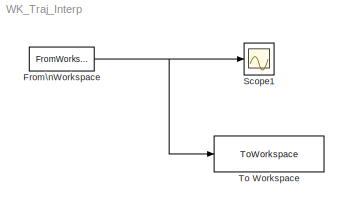
MODEL WK_Traj_Interp
KIND model
CONFIG InitFcn = load UAV2.mat
CONFIG StopFcn = UAV2_Interp.time = [];
BLOCK [FromWorkspace] From\nWorkspace
  OutputAfterFinalValue = Holding final value
  SID = 1
  SampleTime = 0.0067
  VariableName = MB
  ZeroCross = on
BLOCK [Scope] Scope1
  DataFormat = StructureWithTime
  Floating = off
  LimitDataPoints = off
  NumInputPorts = 1
  Ports = [1]
  SID = 2
  SampleTime = 0
  TimeRange = 10
  YMax = 8
  YMin = -3
  ZoomMode = xonly
BLOCK [ToWorkspace] To Workspace
  MaxDataPoints = inf
  Ports = [1]
  SID = 3
  SampleTime = -1
  SaveFormat = Structure With Time
  VariableName = MB_Interp
NET From\nWorkspace:1 -> Scope1:1, To Workspace:1
note: NET lines group one-source signal fan-out (src -> all destinations, sorted); 1:1 wires keep LINE
